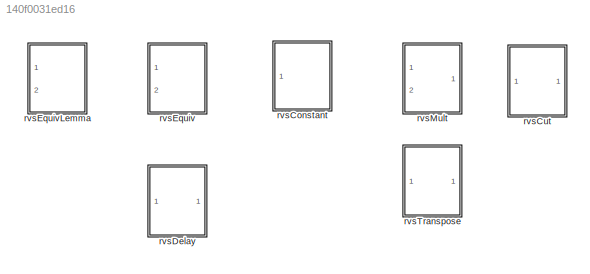
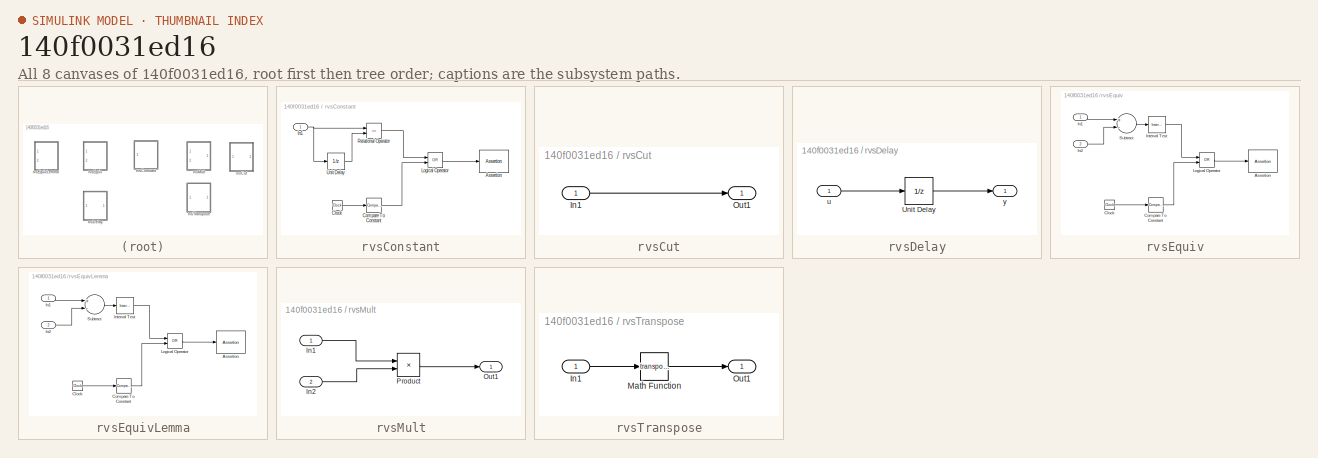
[diagram: thumbnail index - all 8 canvases of the model, root first then tree order]
MODEL slx_140f0031ed16
KIND model
CONFIG AbsTol = auto
CONFIG FixedStep = auto
CONFIG MaxStep = auto
CONFIG MinStep = auto
CONFIG RelTol = 1e-3
CONFIG SampleTimeConstraint = Unconstrained
CONFIG Solver = ode45
CONFIG SolverMode = Auto
CONFIG SolverName = ode45
CONFIG StartTime = 0.0
CONFIG StopTime = 10.0
BLOCK [SubSystem] rvsConstant
  Ports = [1]
  RequestExecContextInheritance = off
  ShowPortLabels = none
  TreatAsAtomicUnit = on
  Variant = off
BLOCK [Assertion] rvsConstant/Assertion
BLOCK [Clock] rvsConstant/Clock
BLOCK [Reference] rvsConstant/Compare To Constant  REF=simulink/Logic and Bit
Operations/Compare
To Constant
  Ports = [1, 1]
  SourceBlock = simulink/Logic and Bit\nOperations/Compare\nTo Constant
  SourceType = Compare To Constant
BLOCK [Inport] rvsConstant/In1
  IconDisplay = Port number
BLOCK [Logic] rvsConstant/Logical Operator
  AllPortsSameDT = off
  Operator = OR
  OutDataTypeStr = boolean
  Ports = [2, 1]
BLOCK [RelationalOperator] rvsConstant/Relational Operator
  InputSameDT = off
  Operator = ==
  OutDataTypeStr = boolean
  Ports = [2, 1]
BLOCK [UnitDelay] rvsConstant/Unit Delay
  InputProcessing = Elements as channels (sample based)
  SampleTime = -1
BLOCK [SubSystem] rvsCut
  Ports = [1, 1]
  RequestExecContextInheritance = off
  ShowPortLabels = none
  TreatAsAtomicUnit = on
  Variant = off
BLOCK [Inport] rvsCut/In1
  IconDisplay = Port number
BLOCK [Outport] rvsCut/Out1
  IconDisplay = Port number
BLOCK [SubSystem] rvsDelay
  Ports = [1, 1]
  RequestExecContextInheritance = off
  TreatAsAtomicUnit = on
  Variant = off
BLOCK [UnitDelay] rvsDelay/Unit Delay
  InitialCondition = xInit
  InputProcessing = Elements as channels (sample based)
  SampleTime = -1
BLOCK [Inport] rvsDelay/u
  IconDisplay = Port number
BLOCK [Outport] rvsDelay/y
  IconDisplay = Port number
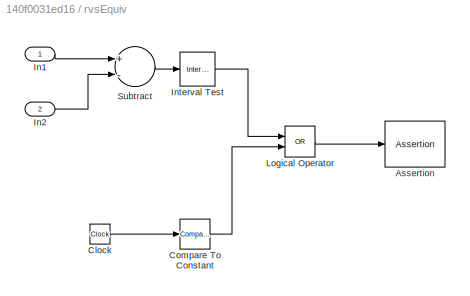
BLOCK [SubSystem] rvsEquiv
  Ports = [2]
  RequestExecContextInheritance = off
  ShowPortLabels = none
  TreatAsAtomicUnit = on
  Variant = off
BLOCK [Assertion] rvsEquiv/Assertion
BLOCK [Clock] rvsEquiv/Clock
BLOCK [Reference] rvsEquiv/Compare To Constant  REF=simulink/Logic and Bit
Operations/Compare
To Constant
  Ports = [1, 1]
  SourceBlock = simulink/Logic and Bit\nOperations/Compare\nTo Constant
  SourceType = Compare To Constant
BLOCK [Inport] rvsEquiv/In1
  IconDisplay = Port number
BLOCK [Inport] rvsEquiv/In2
  IconDisplay = Port number
  Port = 2
BLOCK [Reference] rvsEquiv/Interval Test  REF=simulink/Logic and Bit
Operations/Interval Test
  Ports = [1, 1]
  SourceBlock = simulink/Logic and Bit\nOperations/Interval Test
  SourceType = Interval Test
BLOCK [Logic] rvsEquiv/Logical Operator
  AllPortsSameDT = off
  Operator = OR
  OutDataTypeStr = boolean
  Ports = [2, 1]
BLOCK [Sum] rvsEquiv/Subtract
  InputSameDT = off
  Inputs = +-
  OutDataTypeStr = Inherit: Inherit via internal rule
  Ports = [2, 1]
  SaturateOnIntegerOverflow = off
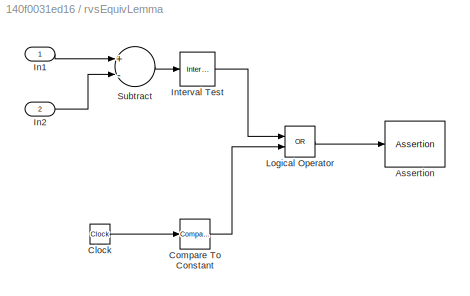
BLOCK [SubSystem] rvsEquivLemma
  Ports = [2]
  RequestExecContextInheritance = off
  ShowPortLabels = none
  TreatAsAtomicUnit = on
  Variant = off
BLOCK [Assertion] rvsEquivLemma/Assertion
BLOCK [Clock] rvsEquivLemma/Clock
BLOCK [Reference] rvsEquivLemma/Compare To Constant  REF=simulink/Logic and Bit
Operations/Compare
To Constant
  Ports = [1, 1]
  SourceBlock = simulink/Logic and Bit\nOperations/Compare\nTo Constant
  SourceType = Compare To Constant
BLOCK [Inport] rvsEquivLemma/In1
  IconDisplay = Port number
BLOCK [Inport] rvsEquivLemma/In2
  IconDisplay = Port number
  Port = 2
BLOCK [Reference] rvsEquivLemma/Interval Test  REF=simulink/Logic and Bit
Operations/Interval Test
  Ports = [1, 1]
  SourceBlock = simulink/Logic and Bit\nOperations/Interval Test
  SourceType = Interval Test
BLOCK [Logic] rvsEquivLemma/Logical Operator
  AllPortsSameDT = off
  Operator = OR
  OutDataTypeStr = boolean
  Ports = [2, 1]
BLOCK [Sum] rvsEquivLemma/Subtract
  InputSameDT = off
  Inputs = +-
  OutDataTypeStr = Inherit: Inherit via internal rule
  Ports = [2, 1]
  SaturateOnIntegerOverflow = off
BLOCK [SubSystem] rvsMult
  Ports = [2, 1]
  RequestExecContextInheritance = off
  ShowPortLabels = none
  TreatAsAtomicUnit = on
  Variant = off
BLOCK [Inport] rvsMult/In1
  IconDisplay = Port number
BLOCK [Inport] rvsMult/In2
  IconDisplay = Port number
  Port = 2
BLOCK [Outport] rvsMult/Out1
  IconDisplay = Port number
BLOCK [Product] rvsMult/Product
  InputSameDT = off
  Multiplication = Matrix(*)
  OutDataTypeStr = Inherit: Inherit via internal rule
  Ports = [2, 1]
  RndMeth = Floor
  SaturateOnIntegerOverflow = off
BLOCK [SubSystem] rvsTranspose
  Ports = [1, 1]
  RequestExecContextInheritance = off
  ShowPortLabels = none
  TreatAsAtomicUnit = on
  Variant = off
BLOCK [Inport] rvsTranspose/In1
  IconDisplay = Port number
BLOCK [Math] rvsTranspose/Math Function
  Operator = transpose
  Ports = [1, 1]
BLOCK [Outport] rvsTranspose/Out1
  IconDisplay = Port number
LINE rvsConstant/Clock:1 -> rvsConstant/Compare To Constant:1
LINE rvsConstant/Compare To Constant:1 -> rvsConstant/Logical Operator:2
NET rvsConstant/In1:1 -> rvsConstant/Relational Operator:1, rvsConstant/Unit Delay:1
LINE rvsConstant/Logical Operator:1 -> rvsConstant/Assertion:1
LINE rvsConstant/Relational Operator:1 -> rvsConstant/Logical Operator:1
LINE rvsConstant/Unit Delay:1 -> rvsConstant/Relational Operator:2
LINE rvsCut/In1:1 -> rvsCut/Out1:1
LINE rvsDelay/Unit Delay:1 -> rvsDelay/y:1
LINE rvsDelay/u:1 -> rvsDelay/Unit Delay:1
LINE rvsEquiv/Clock:1 -> rvsEquiv/Compare To Constant:1
LINE rvsEquiv/Compare To Constant:1 -> rvsEquiv/Logical Operator:2
LINE rvsEquiv/In1:1 -> rvsEquiv/Subtract:1
LINE rvsEquiv/In2:1 -> rvsEquiv/Subtract:2
LINE rvsEquiv/Interval Test:1 -> rvsEquiv/Logical Operator:1
LINE rvsEquiv/Logical Operator:1 -> rvsEquiv/Assertion:1
LINE rvsEquiv/Subtract:1 -> rvsEquiv/Interval Test:1
LINE rvsEquivLemma/Clock:1 -> rvsEquivLemma/Compare To Constant:1
LINE rvsEquivLemma/Compare To Constant:1 -> rvsEquivLemma/Logical Operator:2
LINE rvsEquivLemma/In1:1 -> rvsEquivLemma/Subtract:1
LINE rvsEquivLemma/In2:1 -> rvsEquivLemma/Subtract:2
LINE rvsEquivLemma/Interval Test:1 -> rvsEquivLemma/Logical Operator:1
LINE rvsEquivLemma/Logical Operator:1 -> rvsEquivLemma/Assertion:1
LINE rvsEquivLemma/Subtract:1 -> rvsEquivLemma/Interval Test:1
LINE rvsMult/In1:1 -> rvsMult/Product:1
LINE rvsMult/In2:1 -> rvsMult/Product:2
LINE rvsMult/Product:1 -> rvsMult/Out1:1
LINE rvsTranspose/In1:1 -> rvsTranspose/Math Function:1
LINE rvsTranspose/Math Function:1 -> rvsTranspose/Out1:1
note: NET lines group one-source signal fan-out (src -> all destinations, sorted); 1:1 wires keep LINE
